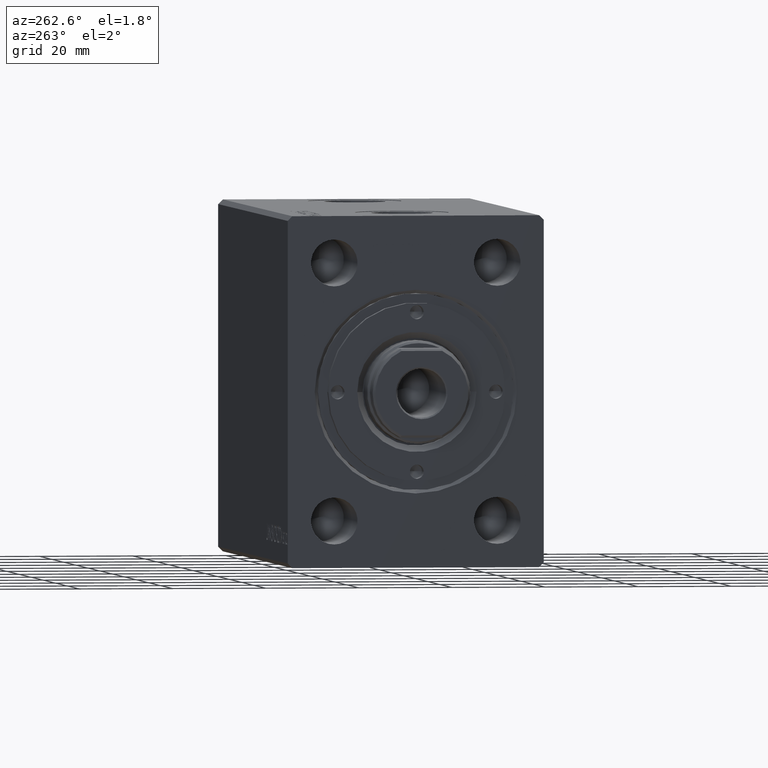
[diagram: clean part render]
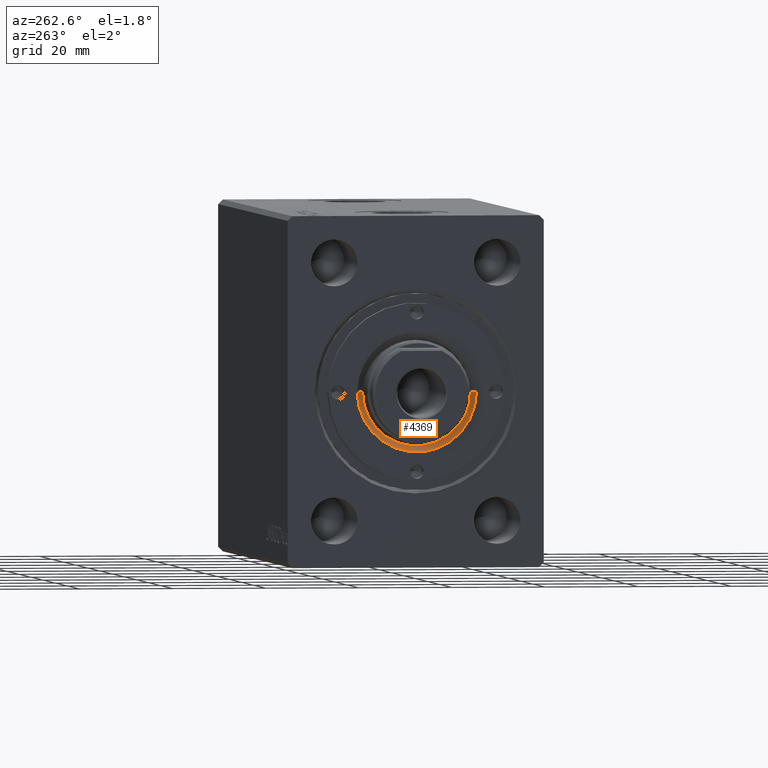
[diagram: same view with one face highlighted and labeled with its STEP entity id]
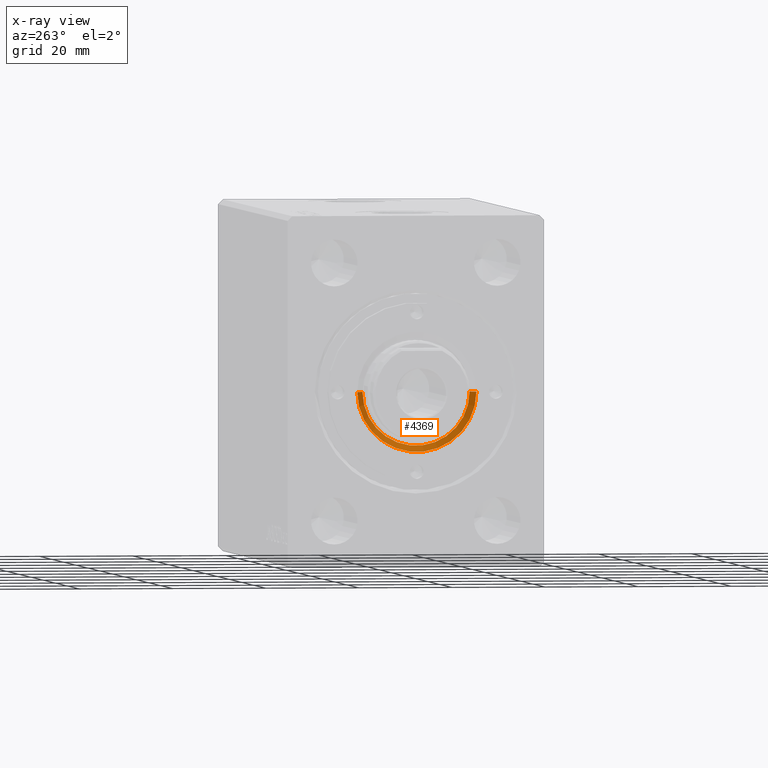
[diagram: x-ray of the same camera — body ghosted, the highlighted face saturated]
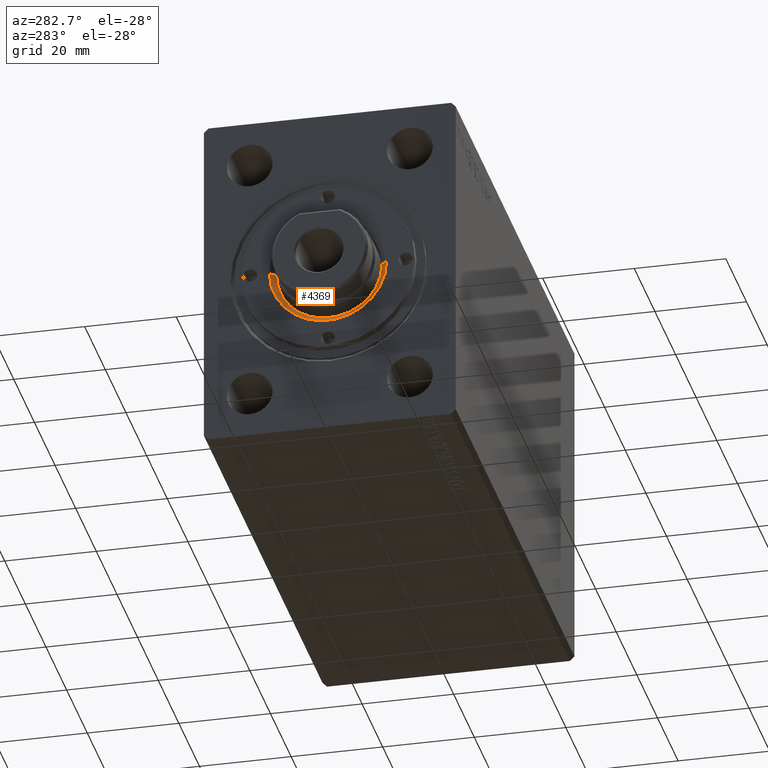
[diagram: same view with one face highlighted and labeled with its STEP entity id]
A machine part, auxiliary view. The second image highlights one B-rep face of the part: STEP entity #4369.
The next image is the same camera in x-ray: the body ghosted, the highlighted face saturated — about 0% of this face is hidden behind the body in this view.
A second angle (auxiliary view) of the same face is appended — the face is thin or edge-on in the first view.
In plain terms, the highlighted conical surface has half-angle 45 deg.
Its self-contained STEP definition (entity closure, byte-faithful):
#699 = EDGE_CURVE ( 'NONE', #29815, #34012, #19673, .T. ) ;
#1132 = CARTESIAN_POINT ( 'NONE',  ( 0.000000000000000000, 0.000000000000000000, 8.199999999999999289 ) ) ;
#2166 = CARTESIAN_POINT ( 'NONE',  ( 10.99999999999995559, 0.000000000000000000, 8.199999999999999289 ) ) ;
#3106 = EDGE_LOOP ( 'NONE', ( #16884, #21182, #28154, #9135 ) ) ;
#4369 = ADVANCED_FACE ( 'NONE', ( #38720 ), #5231, .F. ) ;
#5231 = CONICAL_SURFACE ( 'NONE', #40044, 10.99999999999995559, 0.7853981633974533860 ) ;
#6851 = CIRCLE ( 'NONE', #21768, 12.79999999999997407 ) ;
#7441 = DIRECTION ( 'NONE',  ( 0.000000000000000000, 0.000000000000000000, 1.000000000000000000 ) ) ;
#8535 = CARTESIAN_POINT ( 'NONE',  ( 11.50000000000000000, 0.000000000000000000, 8.700000000000038369 ) ) ;
#9135 = ORIENTED_EDGE ( 'NONE', *, *, #15252, .F. ) ;
#9655 = CARTESIAN_POINT ( 'NONE',  ( 12.79999999999997407, 0.000000000000000000, 9.999999999999998224 ) ) ;
#10779 = DIRECTION ( 'NONE',  ( 1.000000000000000000, 0.000000000000000000, 0.000000000000000000 ) ) ;
#11435 = CARTESIAN_POINT ( 'NONE',  ( -11.50000000000000000, 1.408343819019456176E-15, 8.700000000000038369 ) ) ;
#11523 = VECTOR ( 'NONE', #16340, 1000.000000000000000 ) ;
#11576 = DIRECTION ( 'NONE',  ( 1.000000000000000000, 0.000000000000000000, 0.000000000000000000 ) ) ;
#12847 = LINE ( 'NONE', #2166, #13395 ) ;
#13395 = VECTOR ( 'NONE', #42887, 1000.000000000000000 ) ;
#15004 = CARTESIAN_POINT ( 'NONE',  ( 0.000000000000000000, 0.000000000000000000, 9.999999999999998224 ) ) ;
#15252 = EDGE_CURVE ( 'NONE', #34012, #28368, #6851, .T. ) ;
#16340 = DIRECTION ( 'NONE',  ( -0.7071067811865512365, 8.659560562354979697E-17, 0.7071067811865439090 ) ) ;
#16884 = ORIENTED_EDGE ( 'NONE', *, *, #699, .F. ) ;
#18136 = DIRECTION ( 'NONE',  ( -0.000000000000000000, -0.000000000000000000, -1.000000000000000000 ) ) ;
#19673 = LINE ( 'NONE', #40145, #11523 ) ;
#19848 = EDGE_CURVE ( 'NONE', #29674, #28368, #12847, .T. ) ;
#20483 = EDGE_CURVE ( 'NONE', #29674, #29815, #26887, .T. ) ;
#21176 = CARTESIAN_POINT ( 'NONE',  ( -12.79999999999997407, 1.567547902908609029E-15, 9.999999999999998224 ) ) ;
#21182 = ORIENTED_EDGE ( 'NONE', *, *, #20483, .F. ) ;
#21768 = AXIS2_PLACEMENT_3D ( 'NONE', #15004, #18136, #38380 ) ;
#22016 = DIRECTION ( 'NONE',  ( 0.000000000000000000, 0.000000000000000000, 1.000000000000000000 ) ) ;
#26887 = CIRCLE ( 'NONE', #31851, 11.50000000000000000 ) ;
#27692 = CARTESIAN_POINT ( 'NONE',  ( 0.000000000000000000, 0.000000000000000000, 8.700000000000038369 ) ) ;
#28154 = ORIENTED_EDGE ( 'NONE', *, *, #19848, .T. ) ;
#28368 = VERTEX_POINT ( 'NONE', #9655 ) ;
#29674 = VERTEX_POINT ( 'NONE', #8535 ) ;
#29815 = VERTEX_POINT ( 'NONE', #11435 ) ;
#31851 = AXIS2_PLACEMENT_3D ( 'NONE', #27692, #7441, #10779 ) ;
#34012 = VERTEX_POINT ( 'NONE', #21176 ) ;
#38380 = DIRECTION ( 'NONE',  ( 1.000000000000000000, 0.000000000000000000, 0.000000000000000000 ) ) ;
#38720 = FACE_OUTER_BOUND ( 'NONE', #3106, .T. ) ;
#40044 = AXIS2_PLACEMENT_3D ( 'NONE', #1132, #22016, #11576 ) ;
#40145 = CARTESIAN_POINT ( 'NONE',  ( -10.99999999999995559, 1.347111479062083277E-15, 8.199999999999999289 ) ) ;
#42887 = DIRECTION ( 'NONE',  ( 0.7071067811865512365, 0.000000000000000000, 0.7071067811865439090 ) ) ;